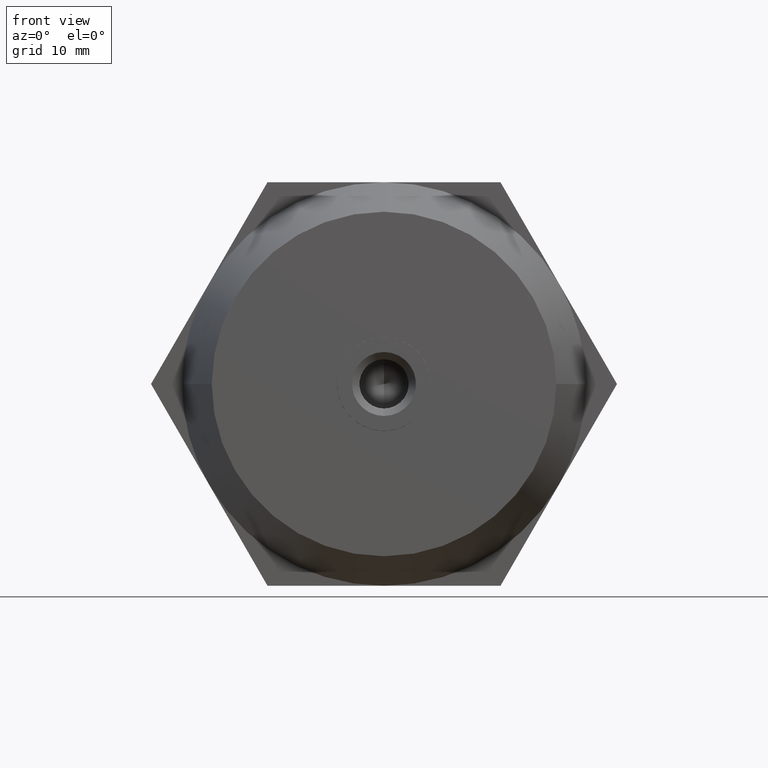
[diagram: clean part render]
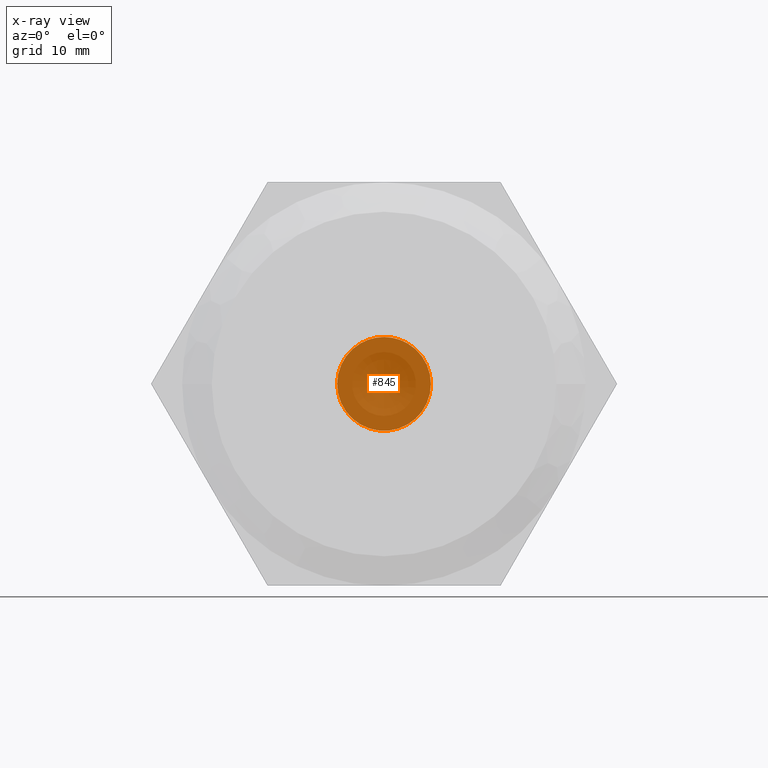
[diagram: x-ray — body ghosted, one internal face saturated and labeled with its STEP entity id]
A machine part, front view, then the same camera in x-ray: the body is ghosted and one INTERNAL B-rep face — a face not visible from any outside direction — is saturated and labeled: STEP entity #845.
In plain terms, the highlighted planar face has unit normal (0, 1, 0).
Its self-contained STEP definition (entity closure, byte-faithful):
#22 = AXIS2_PLACEMENT_3D ( 'NONE', #564, #3233, #2350 ) ;
#43 = VERTEX_POINT ( 'NONE', #3088 ) ;
#58 = CARTESIAN_POINT ( 'NONE',  ( 2.381250000000065400, 12.00999999999942100, -4.124445985523409200 ) ) ;
#147 = DIRECTION ( 'NONE',  ( -0.0000000000000000000, -1.000000000000000000, -0.0000000000000000000 ) ) ;
#218 = AXIS2_PLACEMENT_3D ( 'NONE', #3802, #3772, #470 ) ;
#235 = CARTESIAN_POINT ( 'NONE',  ( 0.0000000000000000000, 12.01000000000000000, 0.0000000000000000000 ) ) ;
#284 = CARTESIAN_POINT ( 'NONE',  ( -2.381250000000000100, 12.01000000000000000, 4.124445985523419900 ) ) ;
#339 = FACE_OUTER_BOUND ( 'NONE', #3440, .T. ) ;
#389 = CIRCLE ( 'NONE', #218, 4.762500000000000200 ) ;
#416 = DIRECTION ( 'NONE',  ( -0.0000000000000000000, -1.000000000000000000, -0.0000000000000000000 ) ) ;
#454 = CARTESIAN_POINT ( 'NONE',  ( 4.762500000000000200, 12.01000000000000000, 0.0000000000000000000 ) ) ;
#470 = DIRECTION ( 'NONE',  ( 0.0000000000000000000, 0.0000000000000000000, 1.000000000000000000 ) ) ;
#483 = ORIENTED_EDGE ( 'NONE', *, *, #1685, .F. ) ;
#555 = AXIS2_PLACEMENT_3D ( 'NONE', #3895, #2933, #2643 ) ;
#564 = CARTESIAN_POINT ( 'NONE',  ( 0.0000000000000000000, 12.01000000000000000, 0.0000000000000000000 ) ) ;
#607 = EDGE_CURVE ( 'NONE', #43, #2434, #3877, .T. ) ;
#746 = ORIENTED_EDGE ( 'NONE', *, *, #2213, .F. ) ;
#806 = CARTESIAN_POINT ( 'NONE',  ( 2.381249999999965000, 12.00999999999940100, 4.124445985523424300 ) ) ;
#837 = VERTEX_POINT ( 'NONE', #454 ) ;
#845 = ADVANCED_FACE ( 'NONE', ( #339 ), #1187, .T. ) ;
#848 = CARTESIAN_POINT ( 'NONE',  ( 0.0000000000000000000, 12.01000000000000000, 4.762500000000000200 ) ) ;
#971 = VERTEX_POINT ( 'NONE', #284 ) ;
#1052 = CARTESIAN_POINT ( 'NONE',  ( 0.0000000000000000000, 12.01000000000000000, 0.0000000000000000000 ) ) ;
#1187 = PLANE ( 'NONE',  #22 ) ;
#1198 = AXIS2_PLACEMENT_3D ( 'NONE', #235, #2968, #3255 ) ;
#1291 = EDGE_CURVE ( 'NONE', #1509, #2329, #2878, .T. ) ;
#1509 = VERTEX_POINT ( 'NONE', #806 ) ;
#1523 = EDGE_CURVE ( 'NONE', #2434, #837, #3028, .T. ) ;
#1557 = ORIENTED_EDGE ( 'NONE', *, *, #607, .F. ) ;
#1652 = DIRECTION ( 'NONE',  ( 3.552713678800500900E-015, 0.0000000000000000000, 1.000000000000000000 ) ) ;
#1685 = EDGE_CURVE ( 'NONE', #3756, #43, #2330, .T. ) ;
#1699 = CARTESIAN_POINT ( 'NONE',  ( 0.0000000000000000000, 12.01000000000000000, 0.0000000000000000000 ) ) ;
#1949 = CARTESIAN_POINT ( 'NONE',  ( 0.0000000000000000000, 12.01000000000000000, 0.0000000000000000000 ) ) ;
#2000 = DIRECTION ( 'NONE',  ( -1.776356839400250500E-015, 0.0000000000000000000, 1.000000000000000000 ) ) ;
#2047 = AXIS2_PLACEMENT_3D ( 'NONE', #1949, #416, #3755 ) ;
#2067 = CIRCLE ( 'NONE', #2079, 4.762500000000000200 ) ;
#2079 = AXIS2_PLACEMENT_3D ( 'NONE', #3807, #2610, #2000 ) ;
#2099 = EDGE_CURVE ( 'NONE', #2329, #971, #389, .T. ) ;
#2213 = EDGE_CURVE ( 'NONE', #971, #3756, #3530, .T. ) ;
#2221 = DIRECTION ( 'NONE',  ( -0.0000000000000000000, -1.000000000000000000, -0.0000000000000000000 ) ) ;
#2329 = VERTEX_POINT ( 'NONE', #848 ) ;
#2330 = CIRCLE ( 'NONE', #1198, 4.762500000000000200 ) ;
#2350 = DIRECTION ( 'NONE',  ( 0.0000000000000000000, 0.0000000000000000000, 1.000000000000000000 ) ) ;
#2376 = ORIENTED_EDGE ( 'NONE', *, *, #2099, .F. ) ;
#2389 = AXIS2_PLACEMENT_3D ( 'NONE', #1052, #2221, #1652 ) ;
#2434 = VERTEX_POINT ( 'NONE', #58 ) ;
#2610 = DIRECTION ( 'NONE',  ( -0.0000000000000000000, -1.000000000000000000, -0.0000000000000000000 ) ) ;
#2643 = DIRECTION ( 'NONE',  ( 0.0000000000000000000, 0.0000000000000000000, 1.000000000000000000 ) ) ;
#2650 = CARTESIAN_POINT ( 'NONE',  ( -4.762500000000000200, 12.01000000000000000, -6.938893903907230000E-015 ) ) ;
#2777 = AXIS2_PLACEMENT_3D ( 'NONE', #1699, #147, #2880 ) ;
#2878 = CIRCLE ( 'NONE', #2389, 4.762500000000000200 ) ;
#2880 = DIRECTION ( 'NONE',  ( 0.0000000000000000000, 0.0000000000000000000, 1.000000000000000000 ) ) ;
#2933 = DIRECTION ( 'NONE',  ( -0.0000000000000000000, -1.000000000000000000, -0.0000000000000000000 ) ) ;
#2968 = DIRECTION ( 'NONE',  ( -0.0000000000000000000, -1.000000000000000000, -0.0000000000000000000 ) ) ;
#3028 = CIRCLE ( 'NONE', #2777, 4.762500000000000200 ) ;
#3088 = CARTESIAN_POINT ( 'NONE',  ( -2.381250000000000100, 12.00999999999942100, -4.124445985523444800 ) ) ;
#3233 = DIRECTION ( 'NONE',  ( 0.0000000000000000000, 1.000000000000000000, 0.0000000000000000000 ) ) ;
#3255 = DIRECTION ( 'NONE',  ( 0.0000000000000000000, 0.0000000000000000000, 1.000000000000000000 ) ) ;
#3332 = EDGE_CURVE ( 'NONE', #837, #1509, #2067, .T. ) ;
#3440 = EDGE_LOOP ( 'NONE', ( #3822, #3894, #3599, #1557, #483, #746, #2376 ) ) ;
#3530 = CIRCLE ( 'NONE', #555, 4.762500000000000200 ) ;
#3599 = ORIENTED_EDGE ( 'NONE', *, *, #1523, .F. ) ;
#3755 = DIRECTION ( 'NONE',  ( 1.776356839400250500E-015, 0.0000000000000000000, 1.000000000000000000 ) ) ;
#3756 = VERTEX_POINT ( 'NONE', #2650 ) ;
#3772 = DIRECTION ( 'NONE',  ( -0.0000000000000000000, -1.000000000000000000, -0.0000000000000000000 ) ) ;
#3802 = CARTESIAN_POINT ( 'NONE',  ( 0.0000000000000000000, 12.01000000000000000, 0.0000000000000000000 ) ) ;
#3807 = CARTESIAN_POINT ( 'NONE',  ( 0.0000000000000000000, 12.01000000000000000, 0.0000000000000000000 ) ) ;
#3822 = ORIENTED_EDGE ( 'NONE', *, *, #1291, .F. ) ;
#3877 = CIRCLE ( 'NONE', #2047, 4.762500000000000200 ) ;
#3894 = ORIENTED_EDGE ( 'NONE', *, *, #3332, .F. ) ;
#3895 = CARTESIAN_POINT ( 'NONE',  ( 0.0000000000000000000, 12.01000000000000000, 0.0000000000000000000 ) ) ;